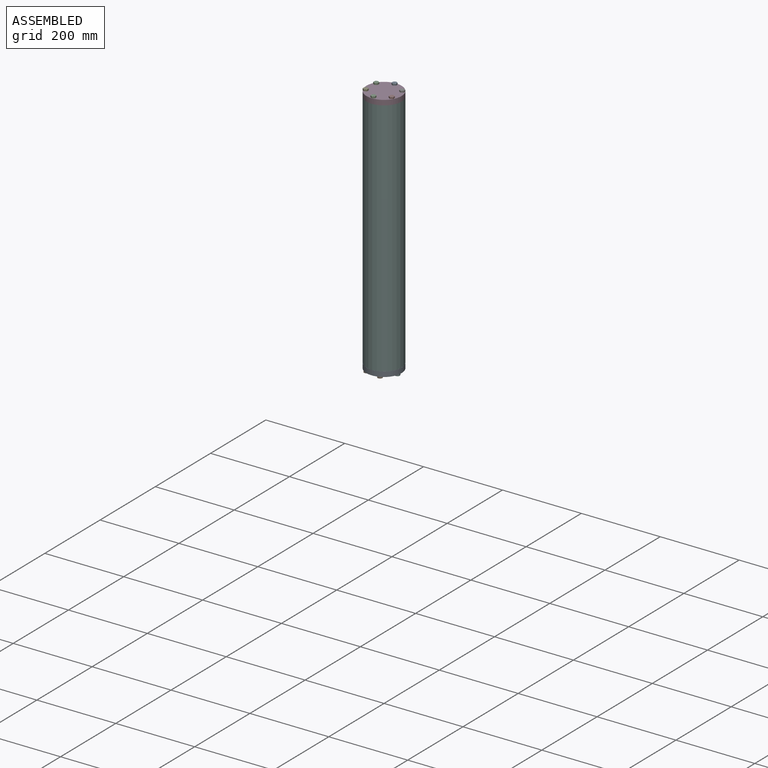
[diagram: assembled view]
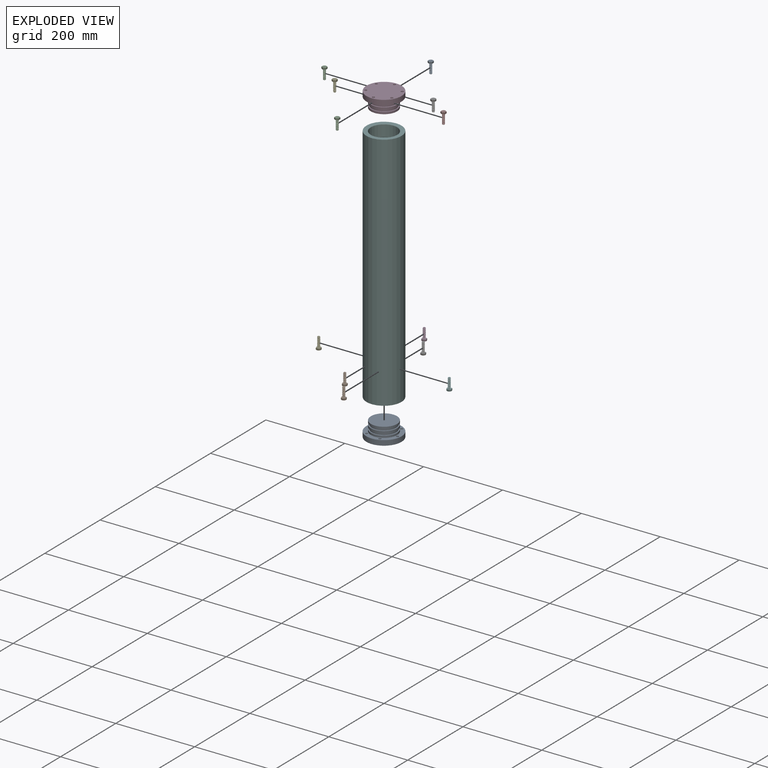
[diagram: exploded view]
GUIDED TOUR — MATED ASSEMBLY (Onshape document 8dc53825923ed87a791a1973, AutoMate assembly 8dc53825923ed87a791a1973_ca939dbc550857e2c724b49d_f4138fc582c3bab2cf52027b_default)

This assembly has 15 components, labeled P0..P14 below (a component is one placed occurrence of a part; the same part can appear more than once), held together by 9 mates. A mate is a constraint between two components; its type names the relative motion it leaves free:
  CYLINDRICAL — leaves both rotation about and translation along the listed axis free,
  PLANAR — leaves sliding in the plane through the listed point (normal = the listed direction) and rotation about that normal free.
Axis/direction vectors are unit vectors and 'through' points are millimeter coordinates, both in the assembly's world frame.

MATES
  1. PLANAR "Planar 2": P3 <-> P13, direction (0.000, 0.000, -1.000) through (0.00, 0.00, -12.70) mm
  2. CYLINDRICAL "Cylindrical 2": P3 <-> P13, axis (0.000, 0.000, -1.000) through (0.00, 0.00, -12.70) mm
  3. CYLINDRICAL "Cylindrical 4": P2 <-> P3, axis (0.000, 0.000, -1.000) through (0.00, -38.10, -25.40) mm
  4. CYLINDRICAL "Cylindrical 5": P14 <-> P8, axis (0.000, 0.000, 1.000) through (23.18, 30.24, -609.60) mm
  5. CYLINDRICAL "Cylindrical 3": P8 <-> P13, axis (0.000, 0.000, 1.000) through (0.00, 0.00, -622.30) mm
  6. PLANAR "Planar 1": P8 <-> P13, direction (0.000, 0.000, 1.000) through (0.00, 0.00, -622.30) mm
  7. CYLINDRICAL "Cylindrical 1": P13 <-> P3, axis (0.000, 0.000, 1.000) through (0.00, 0.00, -12.70) mm
  8. PLANAR "Planar 4": P8 <-> P14, direction (0.000, 0.000, -1.000) through (0.00, 0.00, -635.00) mm
  9. PLANAR "Planar 3": P2 <-> P3, direction (0.000, 0.000, -1.000) through (0.00, -44.52, 0.00) mm

ASSEMBLY ORDER
  1. P3 — the base component [order heuristic]
  2. P13 — core [order heuristic]
  3. P8 — core [order heuristic]
  4. P9 [order verified]
  5. P14 [order verified]
  6. P6 [order verified]
  7. P4 [order verified]
  8. P7 [order verified]
  9. P10 [order verified]
  10. P11 [order verified]
  11. P1 [order verified]
  12. P5 [order verified]
  13. P12 [order verified]
  14. P0 [order verified]
  15. P2 [order verified]
(P0, P1, P2, P4, P5, P6, P7, P9, P10, P11, P12, P14 verified with a relaxed clearance tolerance: the source model stores slight part interference there.)
Order-tag legend:
  [order verified] — this step's position reverses a verified removal order: the component was checked to insert without passing through the ones already placed.
  [order heuristic] — the first 3 components form the assembly's core: parts whose collision-free extraction could not be verified, listed in mate-graph order.

Of the 15 components, 2 carry the full construction recipe — the FeatureScript program that regenerates the part's solid from scratch; the rest are supplied as boundary geometry only.
Because this assembly has more than 12 components, the tour below covers the 12 most significant ones individually (every recipe-attached component first, then the largest by part volume), in assembly order; the remaining 3 are summarized together in a grouped section at the end.
Each toured component is shown spotlighted twice — in the assembled view, then in the exploded view, where a leader line traces a displaced component back to its assembled socket (saturated green if recipe-attached, orange if geometry-only; every other component desaturated gray) — followed by its recipe or geometry summary and the mates that hold it.
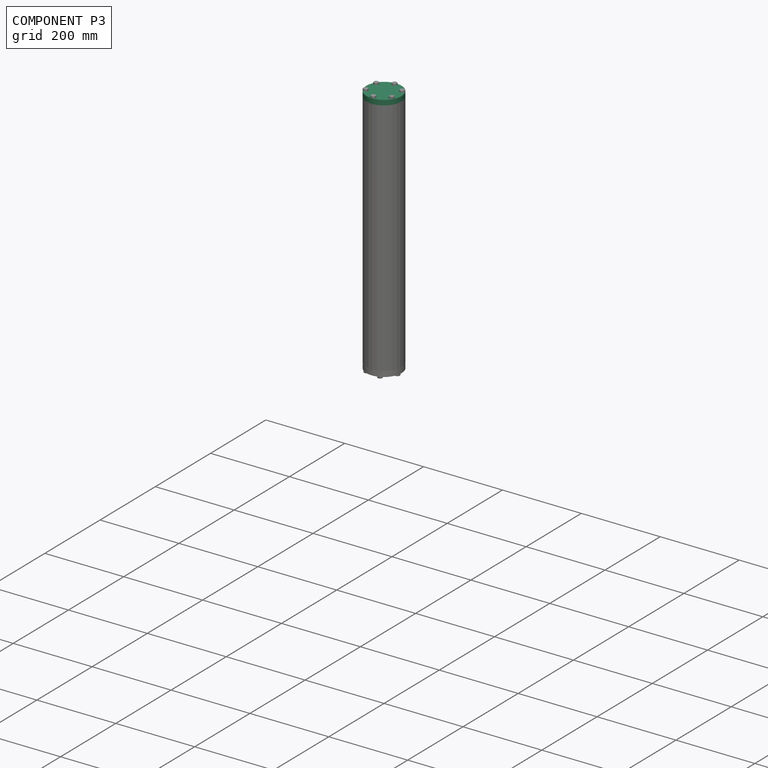
[diagram: component P3 — assembled]
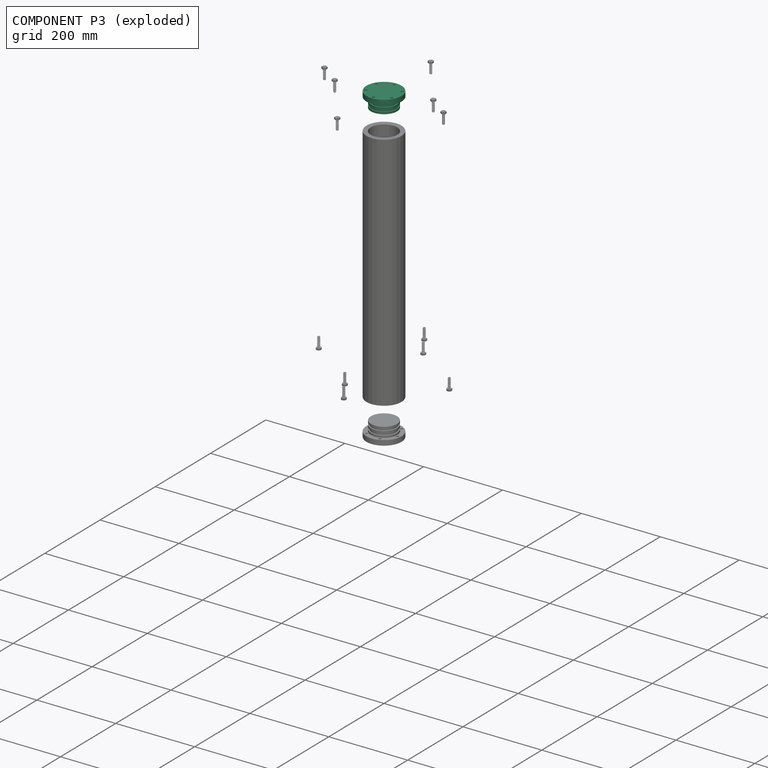
[diagram: component P3 — exploded]
COMPONENT P3 — recipe-attached (CADFS 00291371, mesh-verified: the recipe's output STEP matches this component's geometry to below the mesh-comparison resolution (tessellation chordal tolerance ~0.197 mm)).
Held by: PLANAR mate "Planar 2" to P13; CYLINDRICAL mate "Cylindrical 2" to P13; CYLINDRICAL mate "Cylindrical 4" to P2; CYLINDRICAL mate "Cylindrical 1" to P13; PLANAR mate "Planar 3" to P2.
Construction recipe (FeatureScript — the CAD program that rebuilds this solid; sketch coordinates are in the units given by the * unit suffixes, e.g. mm):

FeatureScript 1511;
import(path : "onshape/std/geometry.fs", version : "1511.0");
import(path : "onshape/std/common.fs", version : "1511.0");
const mm = millimeter;
const VERTEX = EntityType.VERTEX;
const EDGE = EntityType.EDGE;
const FACE = EntityType.FACE;
const BODY = EntityType.BODY;
function v(x, y){return vector(x, y);}
function OD(order){return orderDisambiguation(order);}
function OSD(set){return originalSetDisambiguation(set);}
function TD(topology){return topologyDisambiguation(topology);}
function TDD(query){return trueDependencyDisambiguation(query);}
function sQuery(a, b, c) {return sketchEntityQuery(a, b, c);}

annotation { "Feature Type Name" : "Feature", "Feature Type Description" : "" }
export const myFeature = defineFeature(function(context is Context, id is Id, definition is map)
    precondition{}
    {
        {
            var Q0;
            Q0=qCreatedBy(makeId("Front.planeOp"),FACE);
            var sketch = newSketch(context, id + "F0", { "sketchPlane" : qUnion([Q0])});
            skLineSegment(sketch, "E0", {"start": v(0, 38.1) * mm, "end": v(44.45, 38.1) * mm});
            skLineSegment(sketch, "E1", {"start": v(44.45, 38.1) * mm, "end": v(44.45, 25.4) * mm});
            skLineSegment(sketch, "E2", {"start": v(44.45, 25.4) * mm, "end": v(33.21, 25.4) * mm});
            skLineSegment(sketch, "E3", {"start": v(33.21, 25.4) * mm, "end": v(33.21, 20.32) * mm});
            skLineSegment(sketch, "E4", {"start": v(33.21, 20.32) * mm, "end": v(30.4, 20.32) * mm});
            skLineSegment(sketch, "E5", {"start": v(30.4, 20.32) * mm, "end": v(30.4, 15.57) * mm});
            skLineSegment(sketch, "E6", {"start": v(30.4, 15.57) * mm, "end": v(33.21, 15.57) * mm});
            skLineSegment(sketch, "E7", {"start": v(33.21, 15.57) * mm, "end": v(33.21, 9.83) * mm});
            skLineSegment(sketch, "E8", {"start": v(33.21, 9.83) * mm, "end": v(30.4, 9.83) * mm});
            skLineSegment(sketch, "E9", {"start": v(30.4, 9.83) * mm, "end": v(30.4, 5.08) * mm});
            skLineSegment(sketch, "E10", {"start": v(30.4, 5.08) * mm, "end": v(33.21, 5.08) * mm});
            skLineSegment(sketch, "E11", {"start": v(33.21, 5.08) * mm, "end": v(33.21, 0) * mm});
            skLineSegment(sketch, "E12", {"start": v(33.21, 0) * mm, "end": v(0, 0) * mm});
            skLineSegment(sketch, "E13", {"start": v(0, 38.1) * mm, "end": v(0, 0) * mm});
            skSolve(sketch);
        }
        {
            var Q0;
            Q0=makeQuery(id+"F0.imprint","IMPRINT",FACE,{"disambiguationData":[TD([[makeQuery(id+"F0.imprint","IMPRINT",EDGE,{"derivedFrom":sQuery(id+"F0.wireOp",EDGE,"E0")}),-1.0]])]});
            var sketch = newSketch(context, id + "F1", { "sketchPlane" : qUnion([Q0])});
            skLineSegment(sketch, "E14", {"start": v(0, 87.9) * mm, "end": v(0, -14.54) * mm, "construction": true});
            skSolve(sketch);
        }
        {
            var Q0;
            Q0=makeQuery(id+"F0.imprint","IMPRINT",FACE,{"disambiguationData":[TD([[makeQuery(id+"F0.imprint","IMPRINT",EDGE,{"derivedFrom":sQuery(id+"F0.wireOp",EDGE,"E0")}),-1.0]])]});
            var Q1;
            Q1=sQuery(id+"F1.wireOp",EDGE,"E14");
            revolve(context, id + "F2", {"entities" : qUnion([Q0]), "axis" : qUnion([Q1]), "revolveType" : RevolveType.FULL});
        }
        {
            var Q0;
            Q0=makeQuery(id+"F2.opRevolve","SWEPT_FACE",FACE,{"disambiguationData":[OSD([sQuery(id+"F0.wireOp",EDGE,"E0")])]});
            var sketch = newSketch(context, id + "F3", { "sketchPlane" : qUnion([Q0])});
            skCircle(sketch, "E15", {"center": v(0, 38.1) * mm, "radius": 3.17 * mm});
            skCircle(sketch, "E16.1.0", {"center": v(33, 19.05) * mm, "radius": 3.17 * mm});
            skCircle(sketch, "E16.2.0", {"center": v(33, -19.05) * mm, "radius": 3.17 * mm});
            skCircle(sketch, "E16.3.0", {"center": v(0, -38.1) * mm, "radius": 3.17 * mm});
            skCircle(sketch, "E16.4.0", {"center": v(-33, -19.05) * mm, "radius": 3.17 * mm});
            skCircle(sketch, "E16.5.0", {"center": v(-33, 19.05) * mm, "radius": 3.17 * mm});
            skPoint(sketch, "E16.center", {"position": v(0, 0) * mm});
            skLineSegment(sketch, "E16.anchor1", {"start": v(0, 0) * mm, "end": v(0, 38.1) * mm, "construction": true});
            skLineSegment(sketch, "E16.anchor2", {"start": v(0, 0) * mm, "end": v(-33, 19.05) * mm, "construction": true});
            skSolve(sketch);
        }
        {
            var Q0;
            Q0=makeQuery(id+"F3.imprint","IMPRINT",FACE,{"disambiguationData":[TD([[makeQuery(id+"F3.imprint","IMPRINT",EDGE,{"derivedFrom":sQuery(id+"F3.wireOp",EDGE,"E16.3.0")}),1.0]])]});
            var Q1;
            Q1=makeQuery(id+"F3.imprint","IMPRINT",FACE,{"disambiguationData":[TD([[makeQuery(id+"F3.imprint","IMPRINT",EDGE,{"derivedFrom":sQuery(id+"F3.wireOp",EDGE,"E16.2.0")}),1.0]])]});
            var Q2;
            Q2=makeQuery(id+"F3.imprint","IMPRINT",FACE,{"disambiguationData":[TD([[makeQuery(id+"F3.imprint","IMPRINT",EDGE,{"derivedFrom":sQuery(id+"F3.wireOp",EDGE,"E16.1.0")}),1.0]])]});
            var Q3;
            Q3=makeQuery(id+"F3.imprint","IMPRINT",FACE,{"disambiguationData":[TD([[makeQuery(id+"F3.imprint","IMPRINT",EDGE,{"derivedFrom":sQuery(id+"F3.wireOp",EDGE,"E15")}),1.0]])]});
            var Q4;
            Q4=makeQuery(id+"F3.imprint","IMPRINT",FACE,{"disambiguationData":[TD([[makeQuery(id+"F3.imprint","IMPRINT",EDGE,{"derivedFrom":sQuery(id+"F3.wireOp",EDGE,"E16.5.0")}),1.0]])]});
            var Q5;
            Q5=makeQuery(id+"F3.imprint","IMPRINT",FACE,{"disambiguationData":[TD([[makeQuery(id+"F3.imprint","IMPRINT",EDGE,{"derivedFrom":sQuery(id+"F3.wireOp",EDGE,"E16.4.0")}),1.0]])]});
            extrude(context, id + "F4", {"entities" : qUnion([Q0, Q1, Q2, Q3, Q4, Q5]), "operationType" : NewBodyOperationType.REMOVE, "oppositeDirection" : true, "depth" : 25.4 * mm});
        }
    });
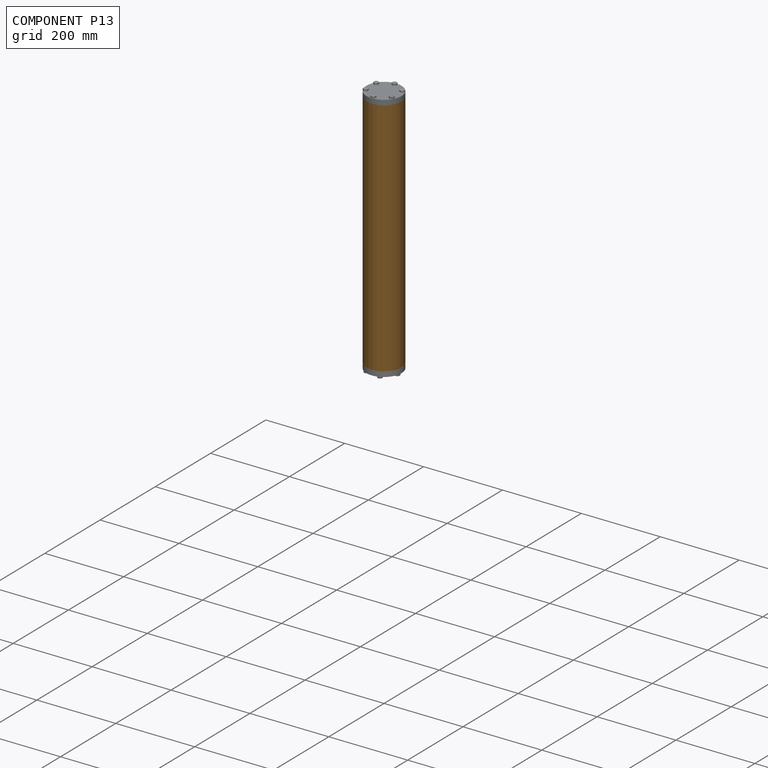
[diagram: component P13 — assembled]
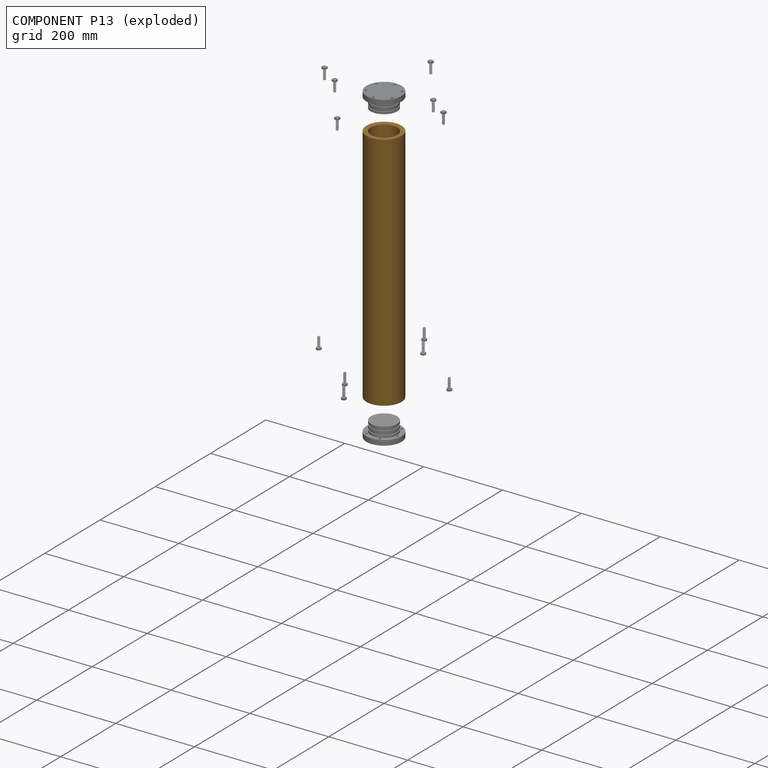
[diagram: component P13 — exploded]
COMPONENT P13 — geometry summary (no construction recipe available for this part):
  bounding box: 609.6 x 88.9 x 88.9 mm
  B-rep topology: 1 solid, 10 faces, 32 edges
  volume: 1834209 mm^3 (38% of its bounding box)
  symmetry: 2-fold rotationally symmetric about the x axis; 2-fold rotationally symmetric about the y axis; revolution-symmetric about the z axis through its bounding-box center; mirror-symmetric across its x mid-plane, y mid-plane, z mid-plane
Held by: PLANAR mate "Planar 2" to P3; CYLINDRICAL mate "Cylindrical 2" to P3; CYLINDRICAL mate "Cylindrical 3" to P8; PLANAR mate "Planar 1" to P8; CYLINDRICAL mate "Cylindrical 1" to P3.
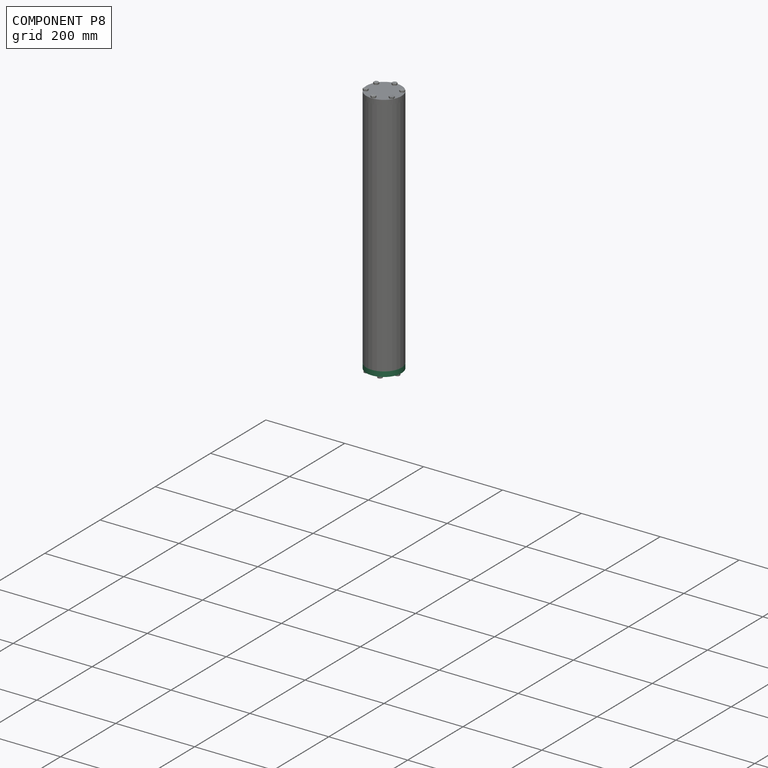
[diagram: component P8 — assembled]
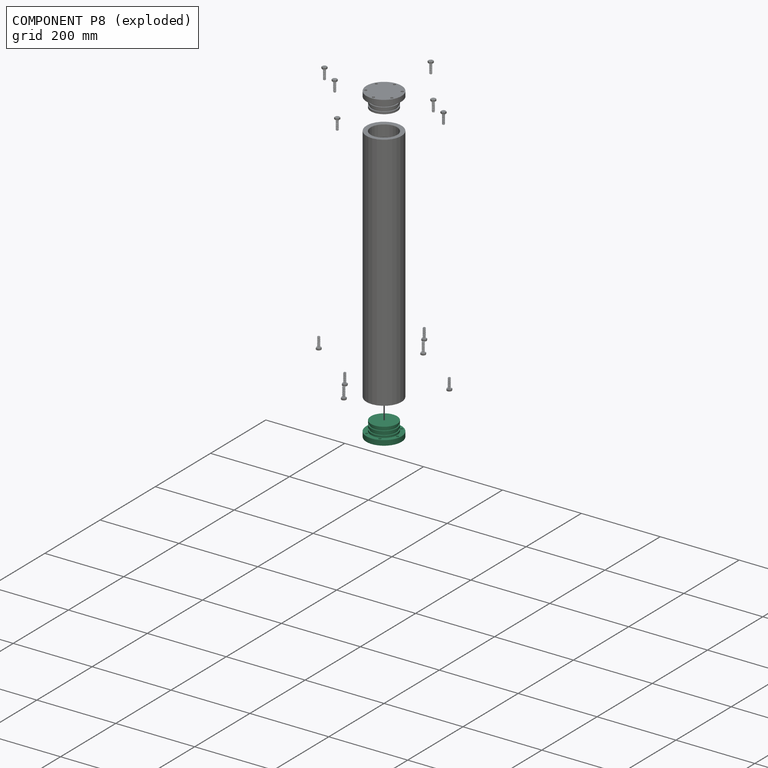
[diagram: component P8 — exploded]
COMPONENT P8 — same part as P3 (CADFS 00291371); its construction recipe is shown at P3.
Held by: CYLINDRICAL mate "Cylindrical 5" to P14; CYLINDRICAL mate "Cylindrical 3" to P13; PLANAR mate "Planar 1" to P13; PLANAR mate "Planar 4" to P14.
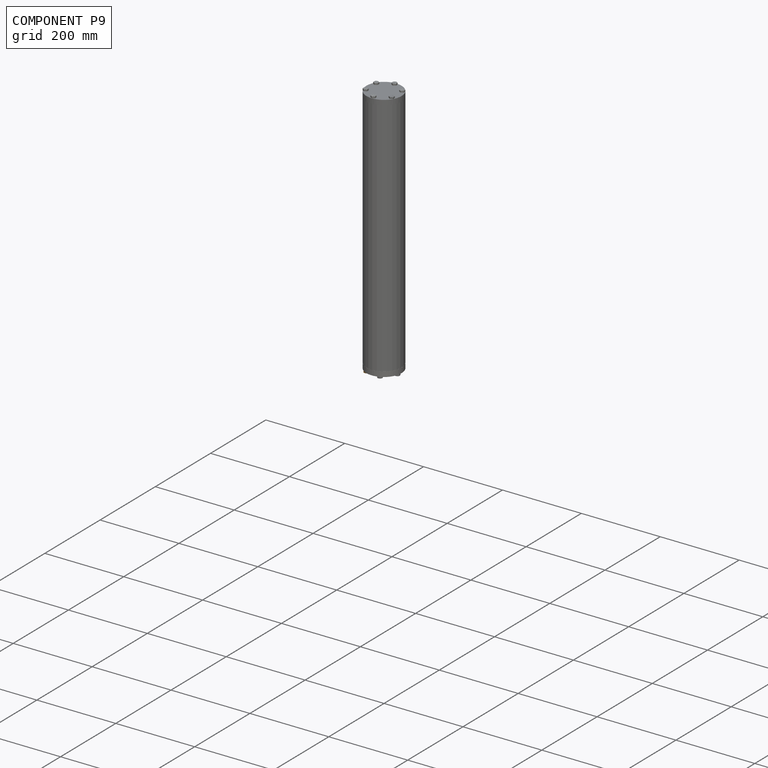
[diagram: component P9 — assembled]
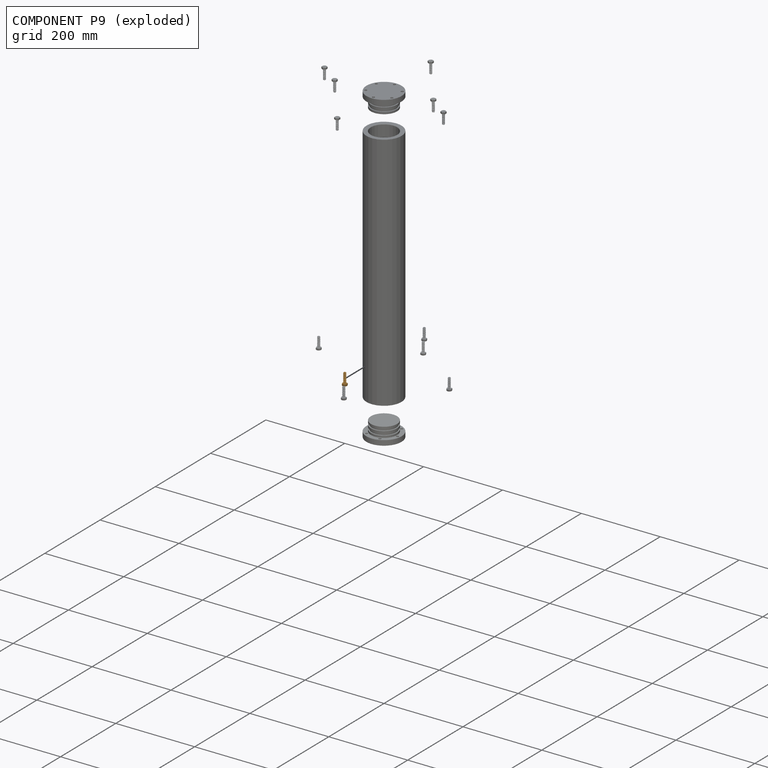
[diagram: component P9 — exploded]
COMPONENT P9 — geometry summary (no construction recipe available for this part):
  bounding box: 30.5 x 13.2 x 13.2 mm
  B-rep topology: 1 solid, 50 faces, 454 edges
  volume: 1127 mm^3 (21% of its bounding box)
  symmetry: 6-fold rotationally symmetric about the x axis
Held by: no mates (free).
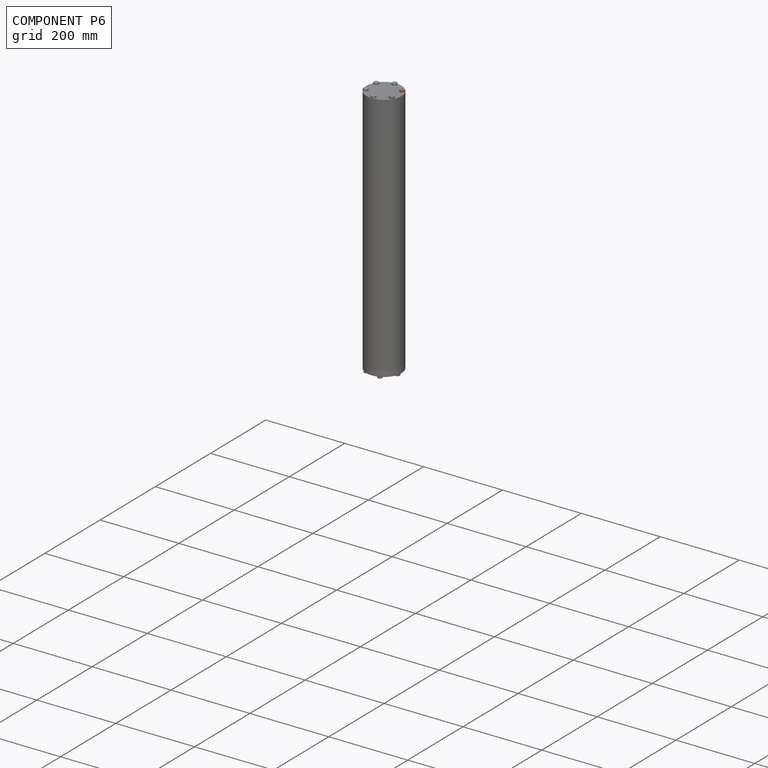
[diagram: component P6 — assembled]
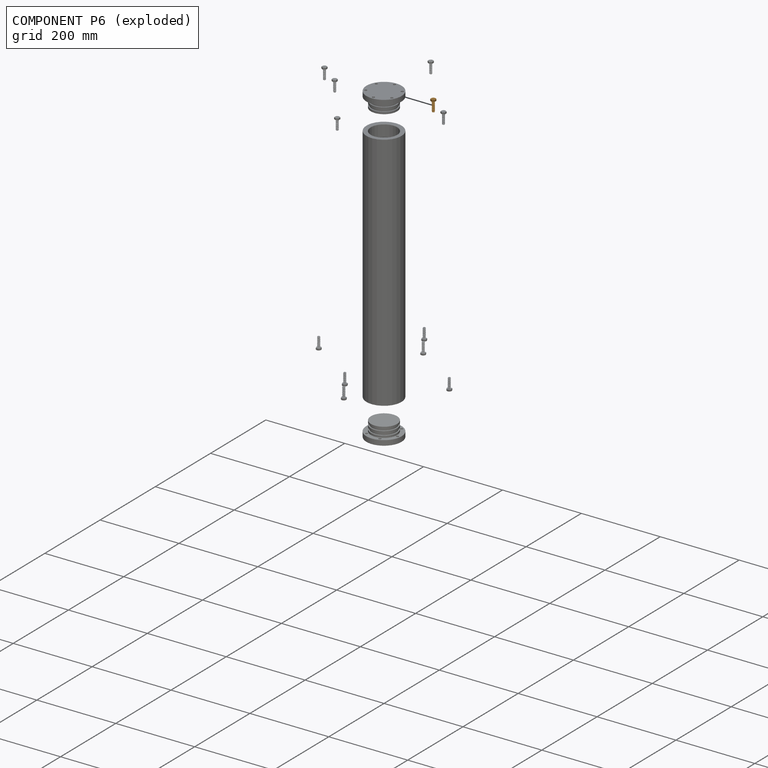
[diagram: component P6 — exploded]
COMPONENT P6 — geometry summary (no construction recipe available for this part):
  bounding box: 30.5 x 13.2 x 13.2 mm
  B-rep topology: 1 solid, 50 faces, 454 edges
  volume: 1127 mm^3 (21% of its bounding box)
  symmetry: 6-fold rotationally symmetric about the x axis
Held by: no mates (free).
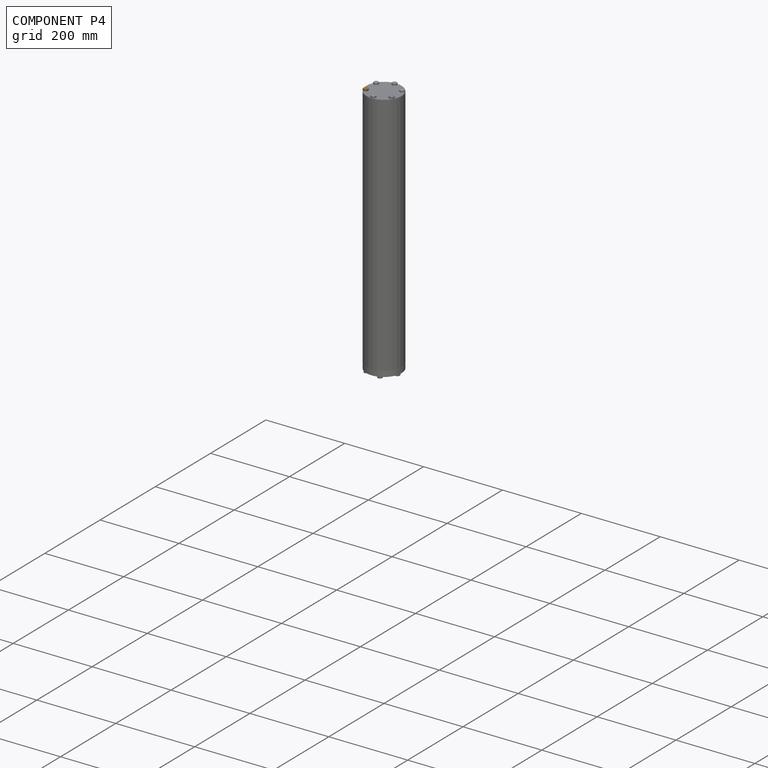
[diagram: component P4 — assembled]
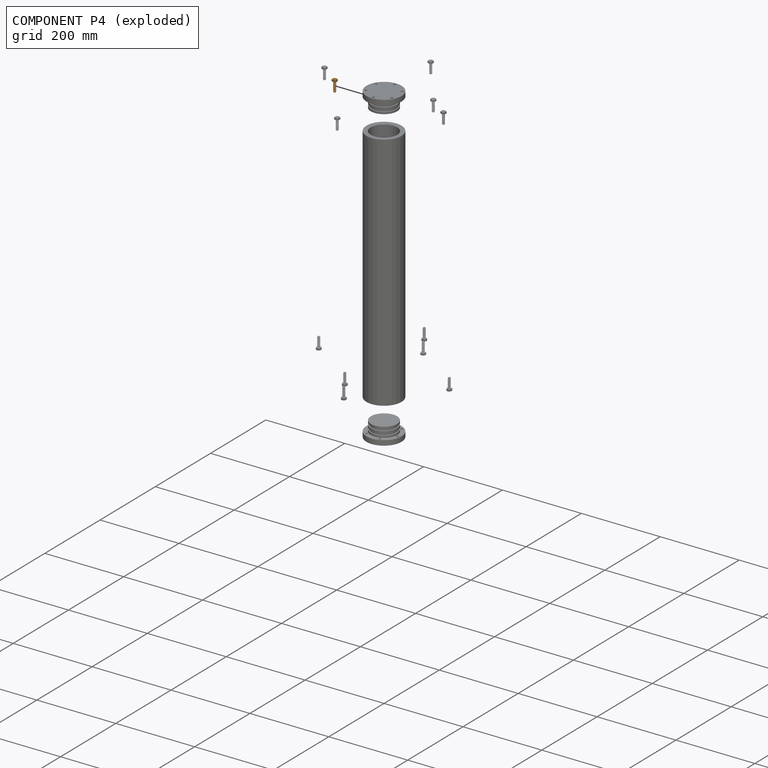
[diagram: component P4 — exploded]
COMPONENT P4 — geometry summary (no construction recipe available for this part):
  bounding box: 30.5 x 13.2 x 13.2 mm
  B-rep topology: 1 solid, 50 faces, 454 edges
  volume: 1127 mm^3 (21% of its bounding box)
  symmetry: 6-fold rotationally symmetric about the x axis
Held by: no mates (free).
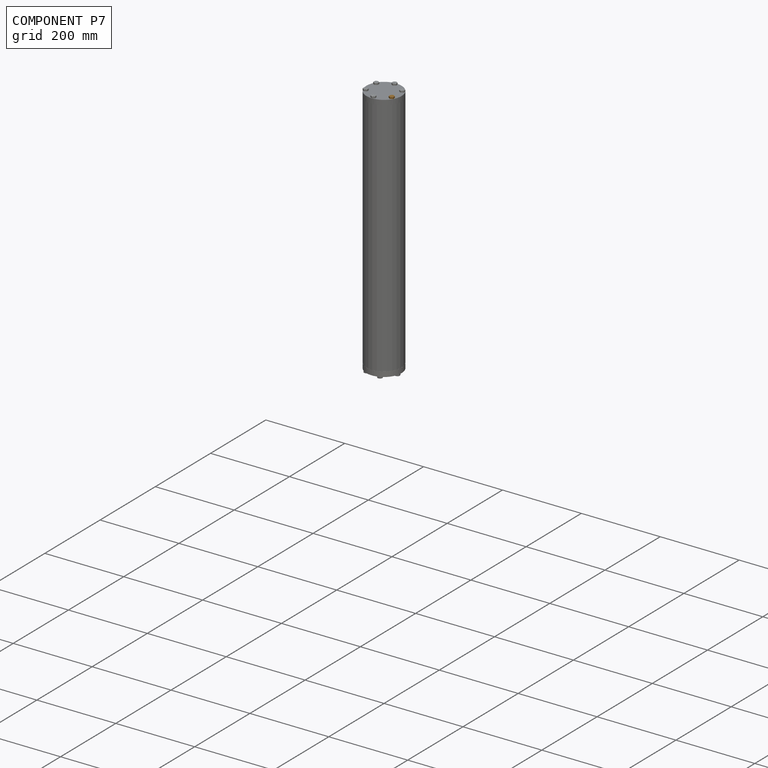
[diagram: component P7 — assembled]
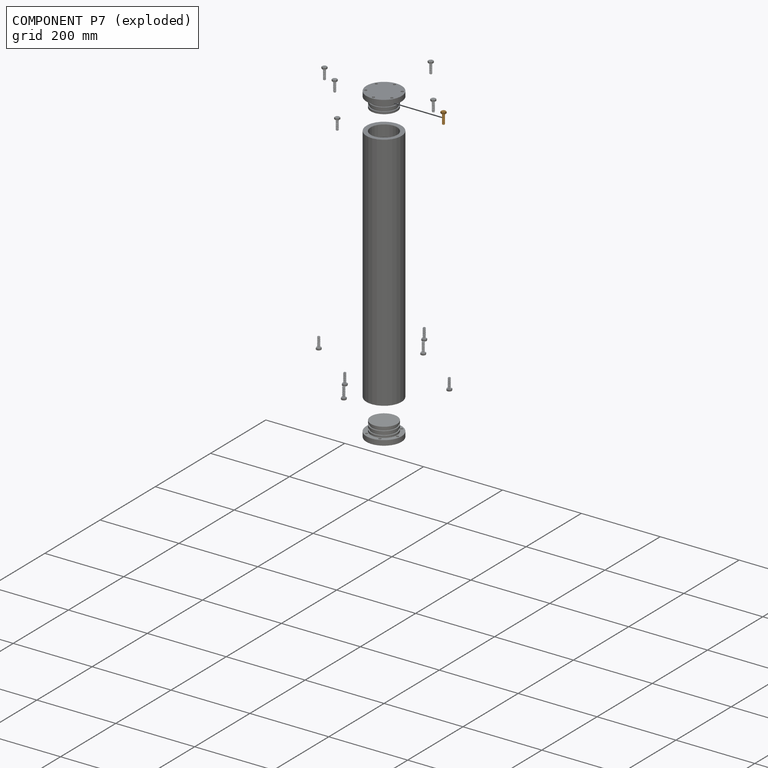
[diagram: component P7 — exploded]
COMPONENT P7 — geometry summary (no construction recipe available for this part):
  bounding box: 30.5 x 13.2 x 13.2 mm
  B-rep topology: 1 solid, 50 faces, 454 edges
  volume: 1127 mm^3 (21% of its bounding box)
  symmetry: 6-fold rotationally symmetric about the x axis
Held by: no mates (free).
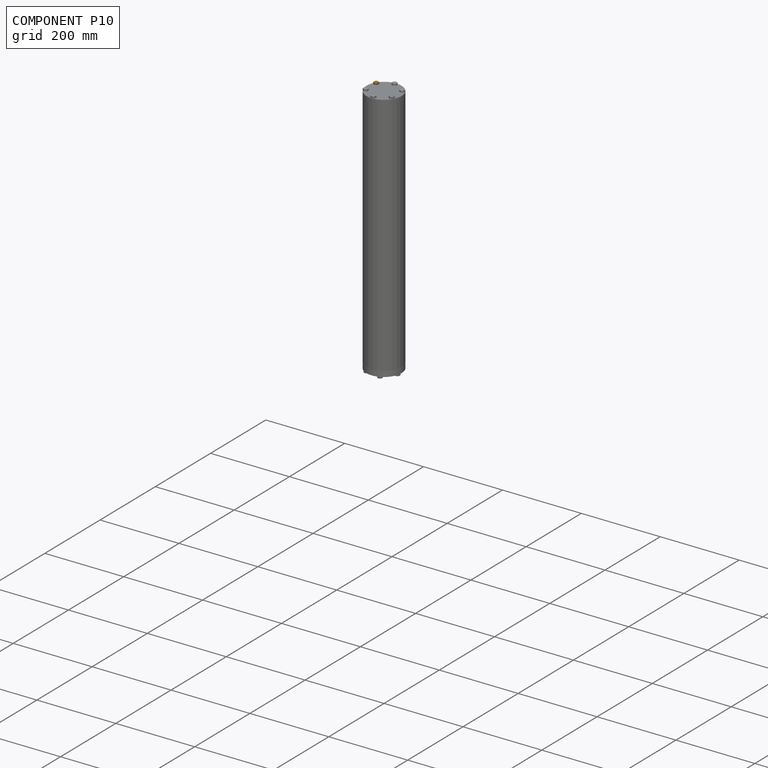
[diagram: component P10 — assembled]
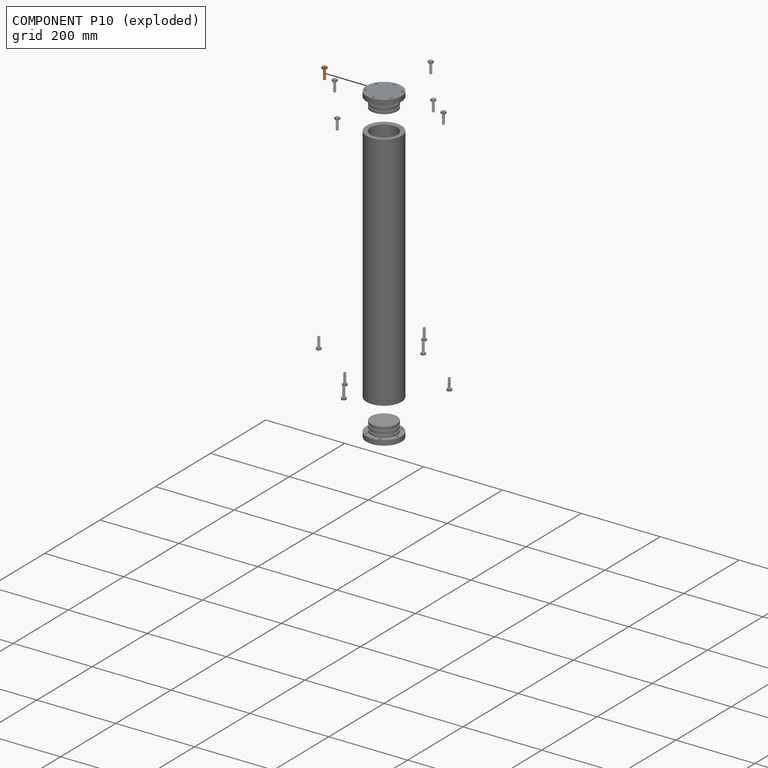
[diagram: component P10 — exploded]
COMPONENT P10 — geometry summary (no construction recipe available for this part):
  bounding box: 30.5 x 13.2 x 13.2 mm
  B-rep topology: 1 solid, 50 faces, 454 edges
  volume: 1127 mm^3 (21% of its bounding box)
  symmetry: 6-fold rotationally symmetric about the x axis
Held by: no mates (free).
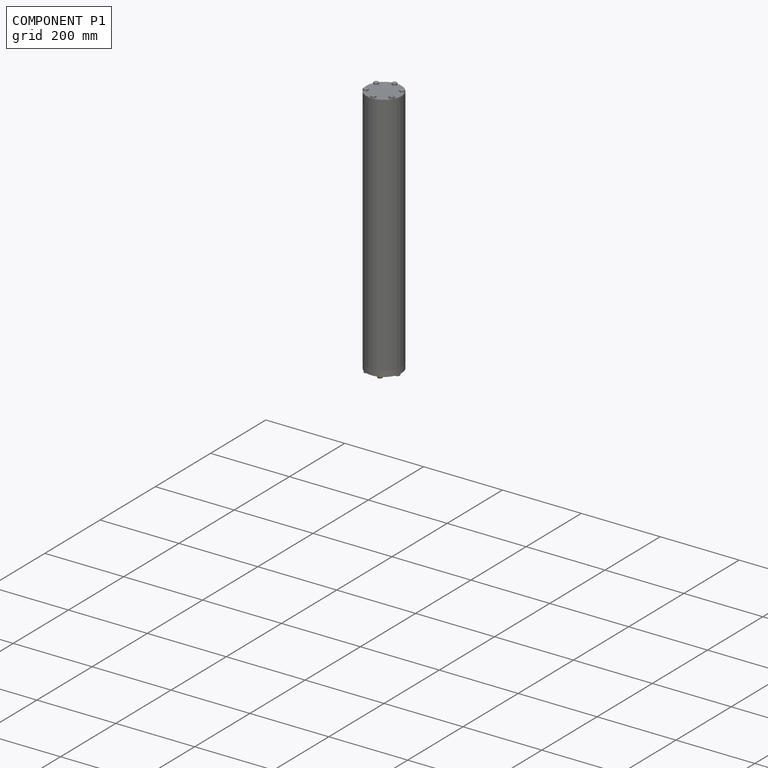
[diagram: component P1 — assembled]
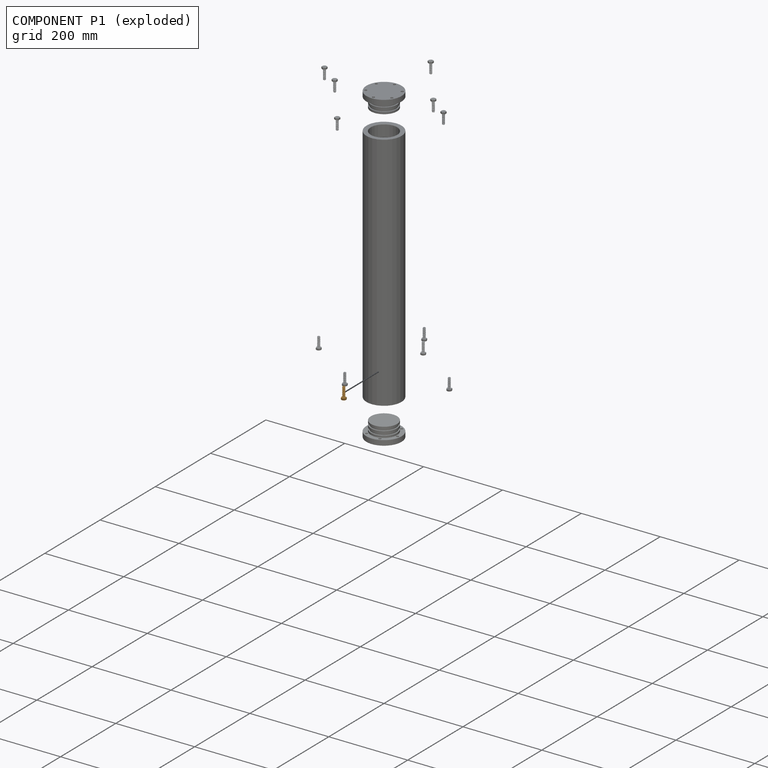
[diagram: component P1 — exploded]
COMPONENT P1 — geometry summary (no construction recipe available for this part):
  bounding box: 30.5 x 13.2 x 13.2 mm
  B-rep topology: 1 solid, 50 faces, 454 edges
  volume: 1127 mm^3 (21% of its bounding box)
  symmetry: 6-fold rotationally symmetric about the x axis
Held by: no mates (free).
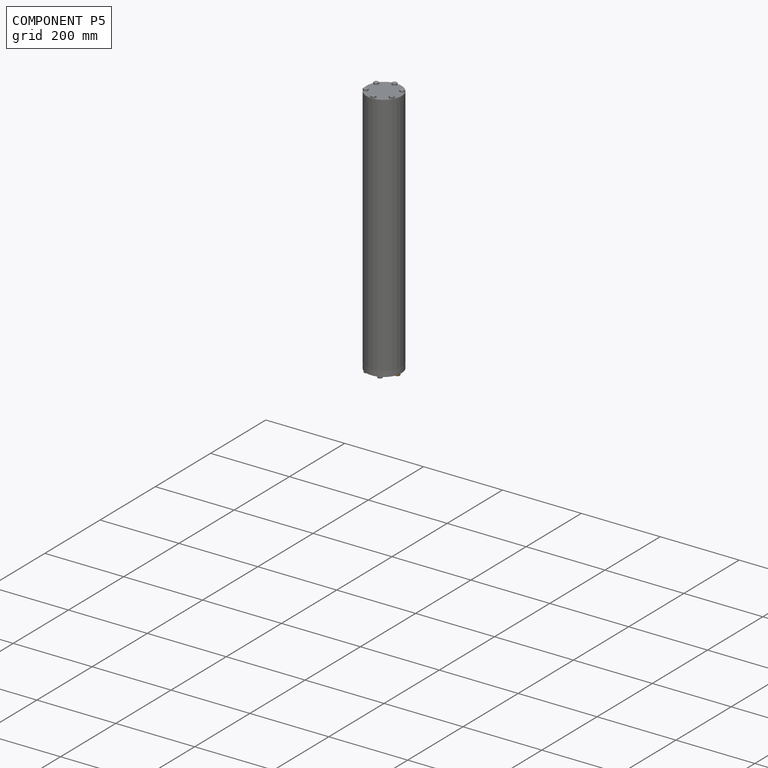
[diagram: component P5 — assembled]
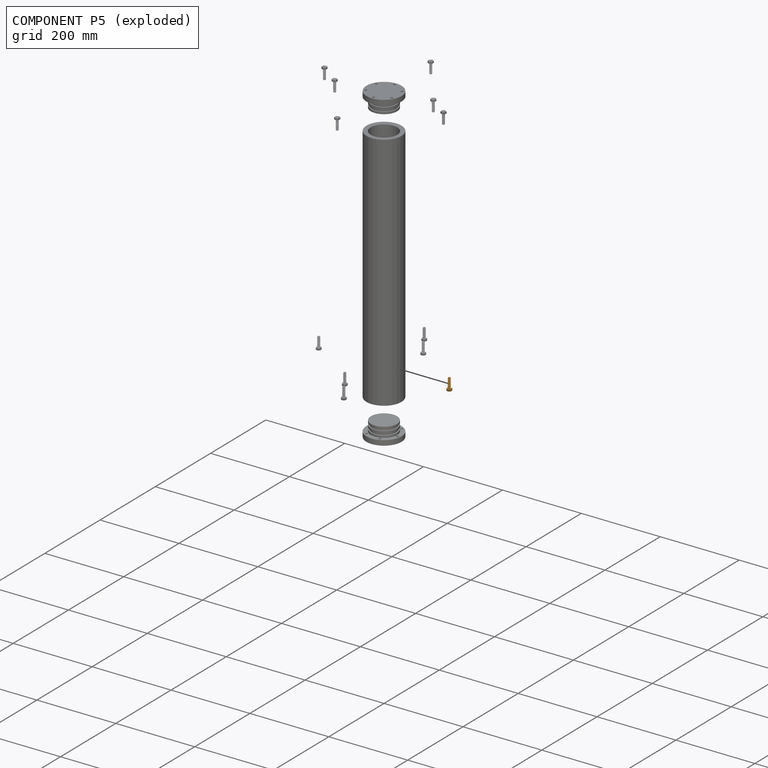
[diagram: component P5 — exploded]
COMPONENT P5 — geometry summary (no construction recipe available for this part):
  bounding box: 30.5 x 13.2 x 13.2 mm
  B-rep topology: 1 solid, 50 faces, 454 edges
  volume: 1127 mm^3 (21% of its bounding box)
  symmetry: 6-fold rotationally symmetric about the x axis
Held by: no mates (free).
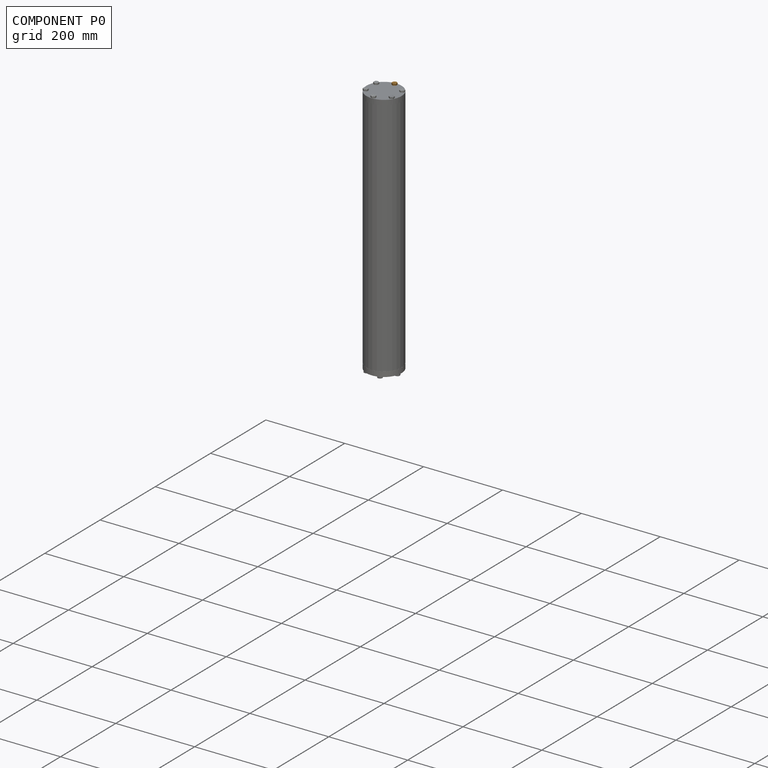
[diagram: component P0 — assembled]
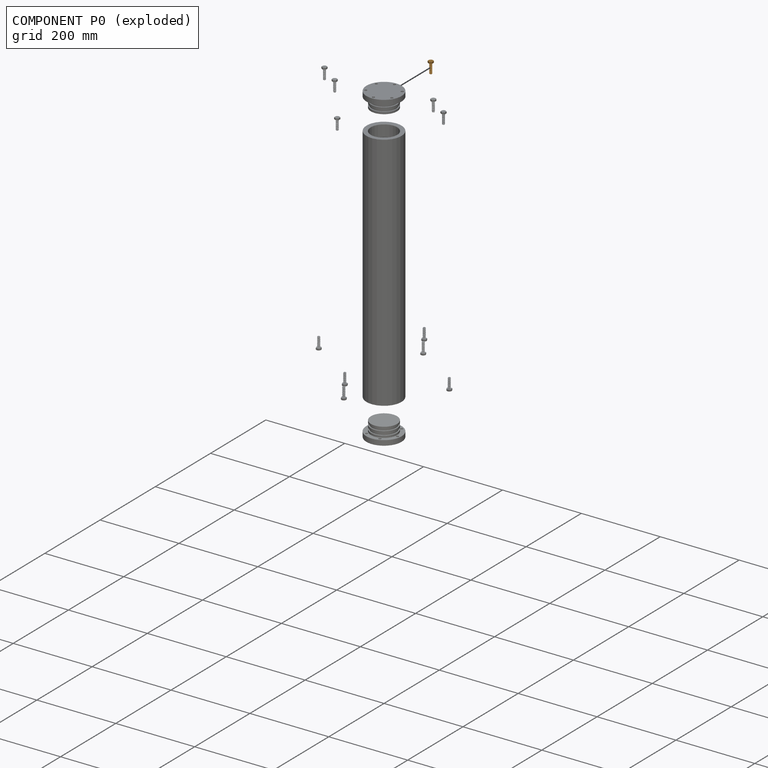
[diagram: component P0 — exploded]
COMPONENT P0 — geometry summary (no construction recipe available for this part):
  bounding box: 30.5 x 13.2 x 13.2 mm
  B-rep topology: 1 solid, 50 faces, 454 edges
  volume: 1127 mm^3 (21% of its bounding box)
  symmetry: 6-fold rotationally symmetric about the x axis
Held by: no mates (free).
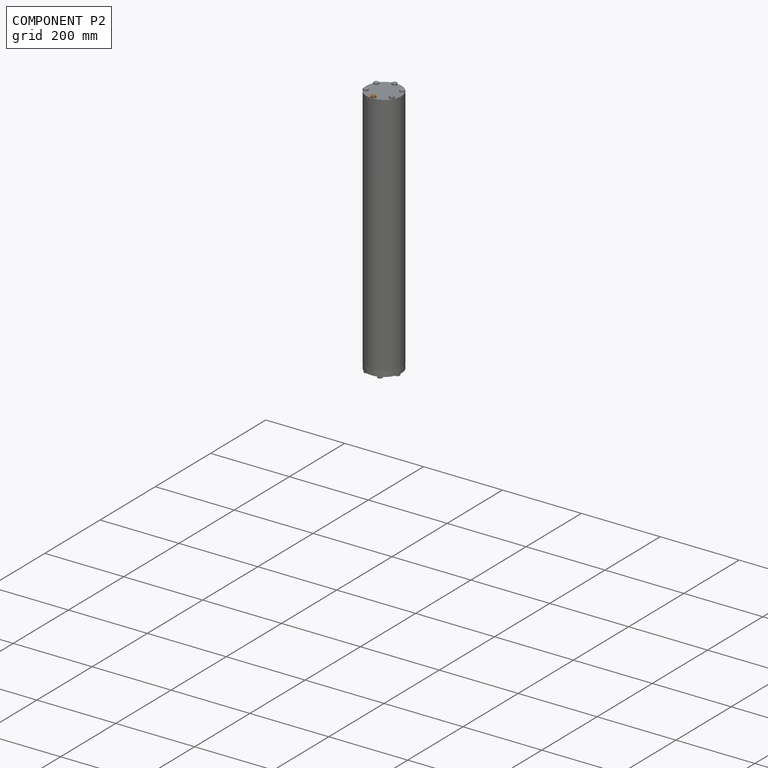
[diagram: component P2 — assembled]
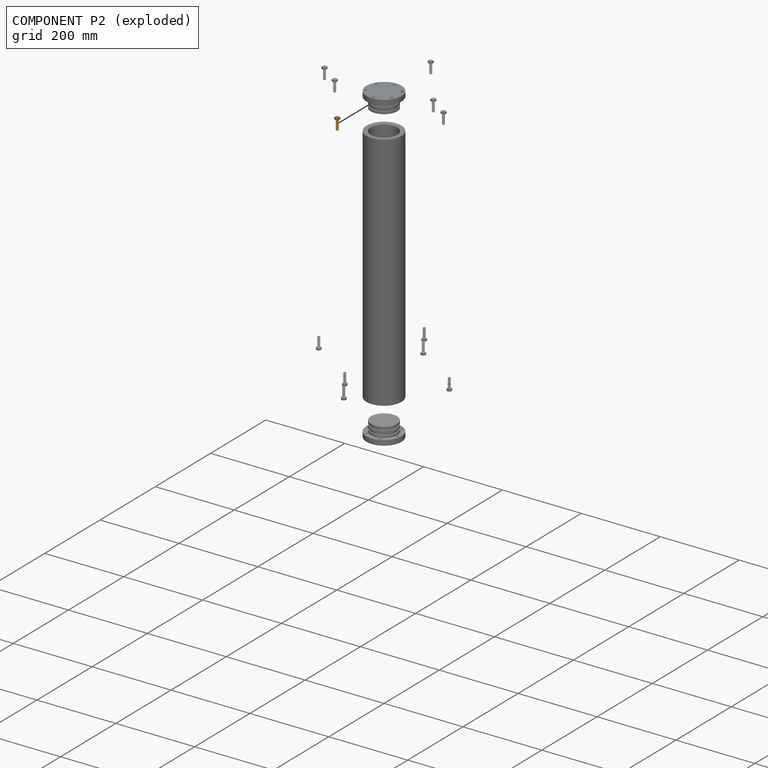
[diagram: component P2 — exploded]
COMPONENT P2 — geometry summary (no construction recipe available for this part):
  bounding box: 30.5 x 13.2 x 13.2 mm
  B-rep topology: 1 solid, 50 faces, 454 edges
  volume: 1127 mm^3 (21% of its bounding box)
  symmetry: 6-fold rotationally symmetric about the x axis
Held by: CYLINDRICAL mate "Cylindrical 4" to P3; PLANAR mate "Planar 3" to P3.
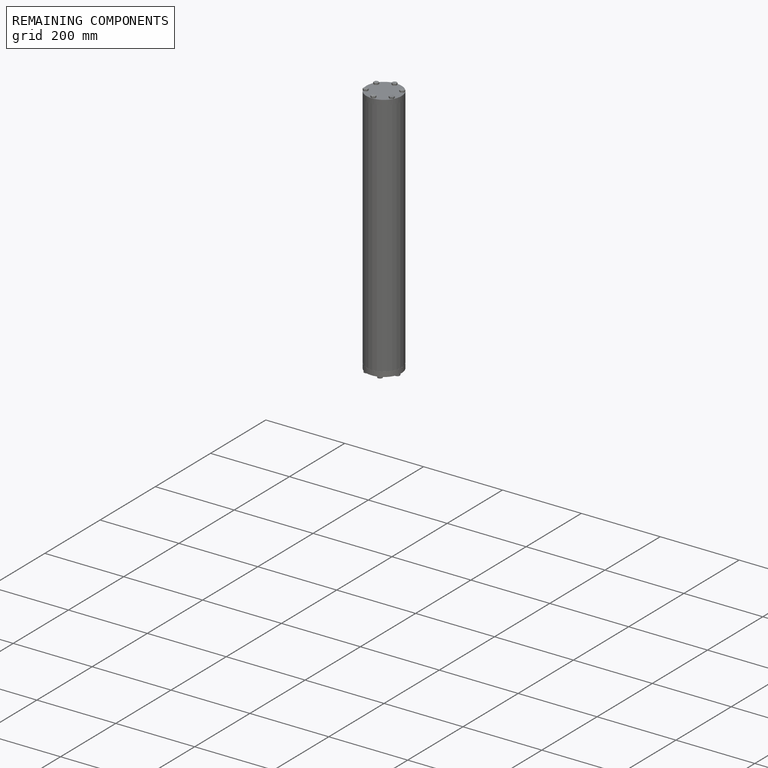
[diagram: remaining components — assembled]
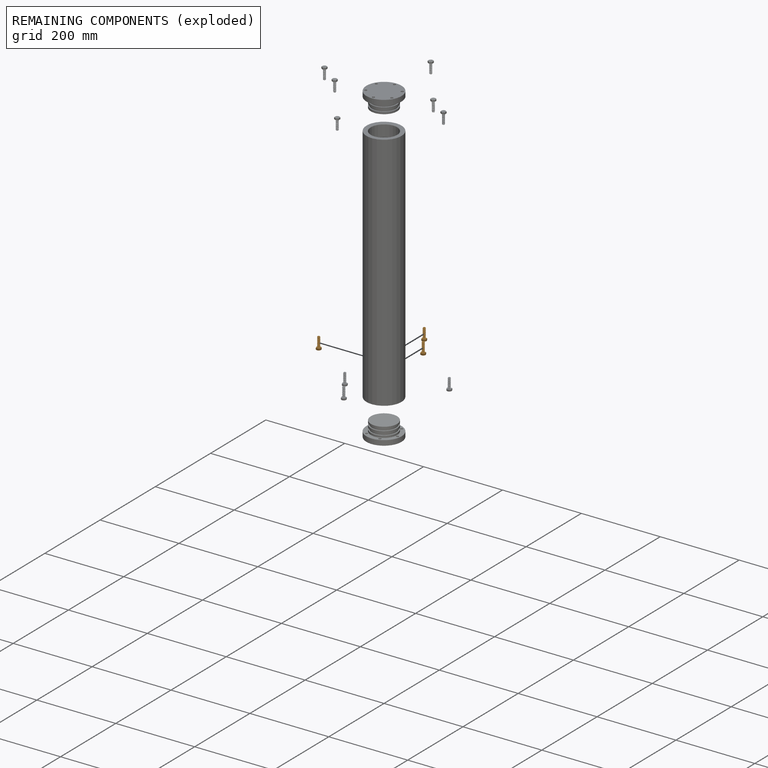
[diagram: remaining components — exploded]
REMAINING COMPONENTS (grouped) — the 3 components below fall outside the per-component tour by the significance rule stated above; both spotlight views highlight the whole group.
  P14: bounding box 30.5 x 13.2 x 13.2 mm, volume 1127 mm^3. Held by: CYLINDRICAL mate "Cylindrical 5" to P8; PLANAR mate "Planar 4" to P8.
  P11: bounding box 30.5 x 13.2 x 13.2 mm, volume 1127 mm^3. Held by: no mates (free).
  P12: bounding box 30.5 x 13.2 x 13.2 mm, volume 1127 mm^3. Held by: no mates (free).
PROVENANCE & LICENSES
Assembly (occurrences, transforms, mates, per-part STEP geometry): AutoMate dataset, Zenodo record 7776208, CC0.
Construction recipes: CADFS (HuggingFace VladPyatov/CADFS, CC-BY-4.0, layered over the ABC dataset), FeatureScript reconstruction programs keyed by ABC model id.
Join: ABC meta listings map ABC model id -> Onshape documentId; within a shared document, parts are matched by geometric signature (bounding-box dims + volume at 0.1% relative tolerance, exact B-rep face/solid counts).
Verification: 2 of this assembly's 15 components carry a recipe attachment, and every attachment is mesh-verified: the CADFS STEP and the AutoMate member STEP were compared as meshes in their shared local frame (symmetric sampled-point-to-mesh distance); worst across the 2 attachments: below the mesh-comparison resolution (tessellation chordal tolerance ~0.197 mm) on a 131 mm part.
Renders: orthographic iso camera (az 35 / el 25); the floor grid conveys scale (grid pitch printed in each image; no ruler). In the exploded view each component is displaced by its stored offset vector: the offsets alone carry the explosion direction (mate normal/axis signs are not orientation cues and do not encode it), and separation distances are assigned per mate-chain, not proportionally to assembly-order depth.
